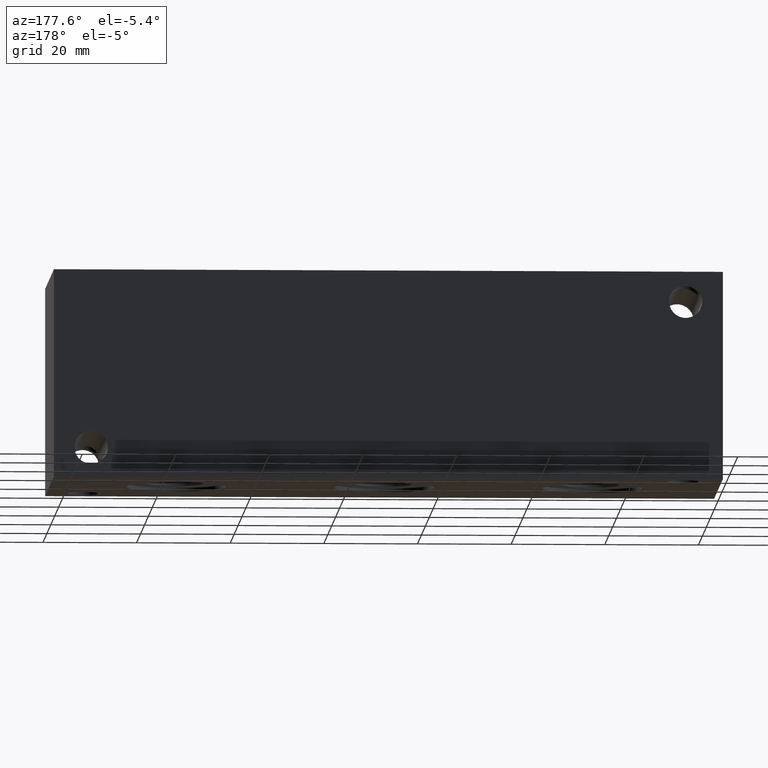
[diagram: clean part render]
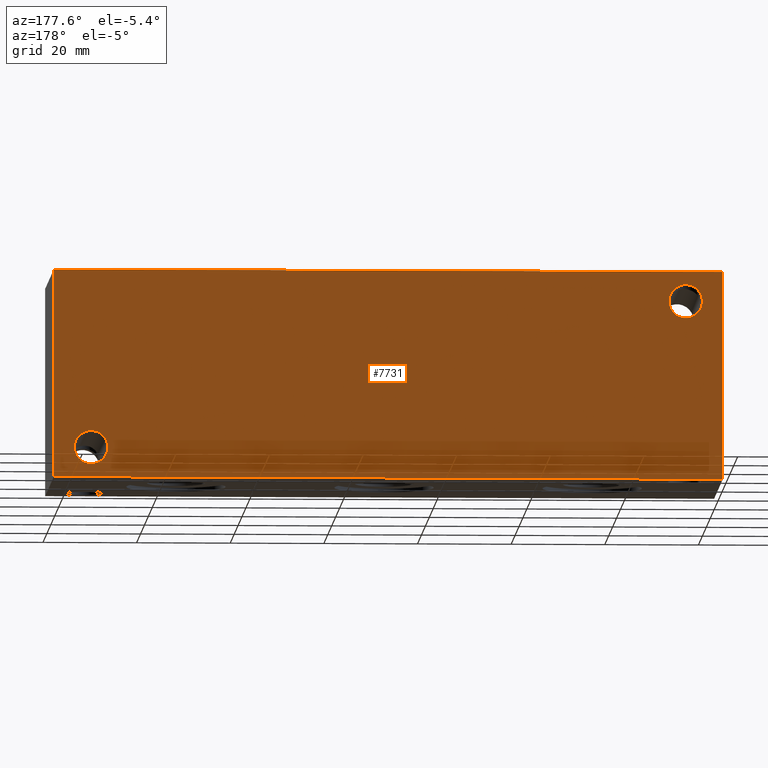
[diagram: same view with one face highlighted and labeled with its STEP entity id]
A machine part, auxiliary view. The second image highlights one B-rep face of the part: STEP entity #7731.
In plain terms, the highlighted planar face has unit normal (0, 1, 0).
Its self-contained STEP definition (entity closure, byte-faithful):
#179=CIRCLE('',#8121,3.5687);
#182=CIRCLE('',#8130,3.5687);
#245=FACE_BOUND('',#1321,.T.);
#246=FACE_BOUND('',#1322,.T.);
#481=PLANE('',#8163);
#878=FACE_OUTER_BOUND('',#1320,.T.);
#1320=EDGE_LOOP('',(#6892,#6893,#6894,#6895));
#1321=EDGE_LOOP('',(#6896));
#1322=EDGE_LOOP('',(#6897));
#1621=LINE('',#11961,#2356);
#2063=LINE('',#13255,#2798);
#2064=LINE('',#13258,#2799);
#2065=LINE('',#13259,#2800);
#2356=VECTOR('',#8605,10.);
#2798=VECTOR('',#9725,10.);
#2799=VECTOR('',#9728,10.);
#2800=VECTOR('',#9729,10.);
#3332=VERTEX_POINT('',#11958);
#3333=VERTEX_POINT('',#11960);
#3694=VERTEX_POINT('',#13171);
#3699=VERTEX_POINT('',#13187);
#3717=VERTEX_POINT('',#13251);
#3719=VERTEX_POINT('',#13257);
#4200=EDGE_CURVE('',#3332,#3333,#1621,.T.);
#4742=EDGE_CURVE('',#3694,#3694,#179,.T.);
#4751=EDGE_CURVE('',#3699,#3699,#182,.T.);
#4783=EDGE_CURVE('',#3717,#3333,#2063,.T.);
#4784=EDGE_CURVE('',#3719,#3717,#2064,.T.);
#4785=EDGE_CURVE('',#3719,#3332,#2065,.T.);
#6892=ORIENTED_EDGE('',*,*,#4784,.T.);
#6893=ORIENTED_EDGE('',*,*,#4783,.T.);
#6894=ORIENTED_EDGE('',*,*,#4200,.F.);
#6895=ORIENTED_EDGE('',*,*,#4785,.F.);
#6896=ORIENTED_EDGE('',*,*,#4742,.T.);
#6897=ORIENTED_EDGE('',*,*,#4751,.T.);
#7731=ADVANCED_FACE('',(#878,#245,#246),#481,.T.);
#8121=AXIS2_PLACEMENT_3D('',#13173,#9625,#9626);
#8130=AXIS2_PLACEMENT_3D('',#13189,#9645,#9646);
#8163=AXIS2_PLACEMENT_3D('',#13256,#9726,#9727);
#8605=DIRECTION('',(-1.,0.,0.));
#9625=DIRECTION('center_axis',(0.,-1.,0.));
#9626=DIRECTION('ref_axis',(1.,0.,0.));
#9645=DIRECTION('center_axis',(0.,-1.,0.));
#9646=DIRECTION('ref_axis',(1.,0.,0.));
#9725=DIRECTION('',(0.,0.,1.));
#9726=DIRECTION('center_axis',(0.,1.,0.));
#9727=DIRECTION('ref_axis',(-1.,0.,0.));
#9728=DIRECTION('',(-1.,0.,0.));
#9729=DIRECTION('',(0.,0.,1.));
#11958=CARTESIAN_POINT('',(142.875,44.45,44.45));
#11960=CARTESIAN_POINT('',(0.,44.45,44.45));
#11961=CARTESIAN_POINT('',(142.875,44.45,44.45));
#13171=CARTESIAN_POINT('',(4.3561,44.45,38.1));
#13173=CARTESIAN_POINT('Origin',(7.9248,44.45,38.1));
#13187=CARTESIAN_POINT('',(131.3561,44.45,6.35));
#13189=CARTESIAN_POINT('Origin',(134.9248,44.45,6.35));
#13251=CARTESIAN_POINT('',(0.,44.45,0.));
#13255=CARTESIAN_POINT('',(0.,44.45,0.));
#13256=CARTESIAN_POINT('Origin',(142.875,44.45,0.));
#13257=CARTESIAN_POINT('',(142.875,44.45,0.));
#13258=CARTESIAN_POINT('',(142.875,44.45,0.));
#13259=CARTESIAN_POINT('',(142.875,44.45,0.));